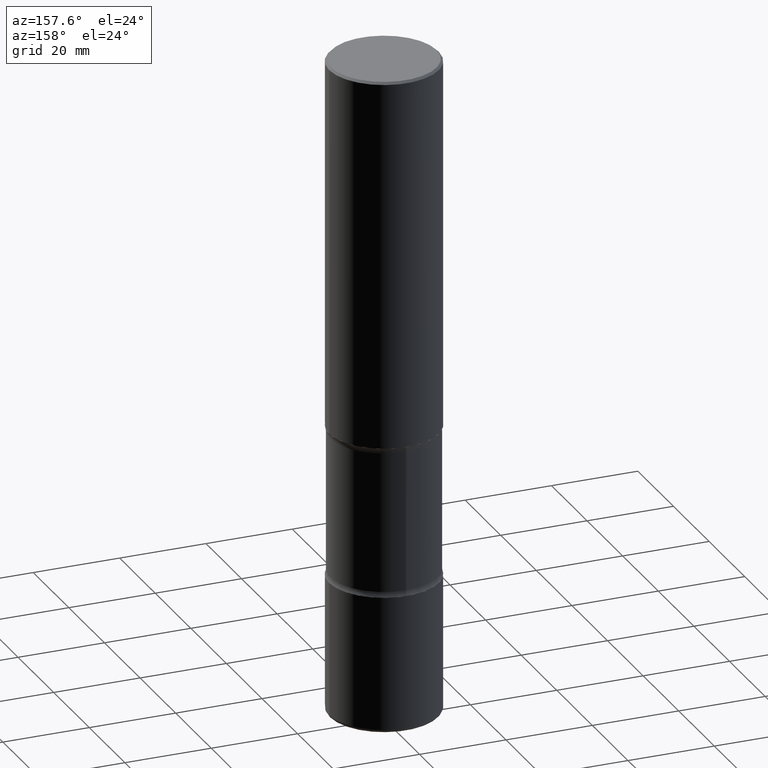
[diagram: clean part render]
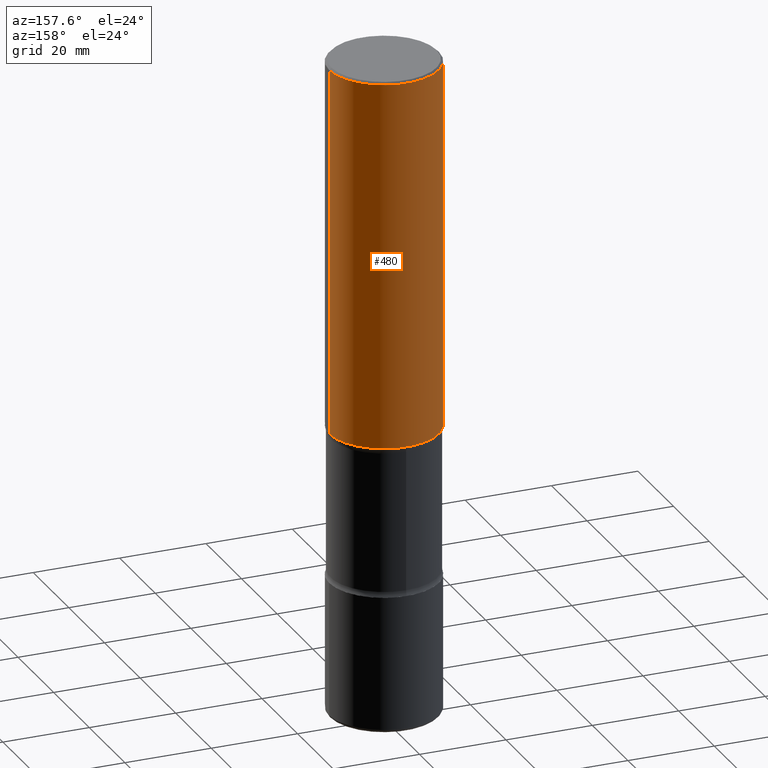
[diagram: same view with one face highlighted and labeled with its STEP entity id]
A machine part, auxiliary view. The second image highlights one B-rep face of the part: STEP entity #480.
In plain terms, the highlighted cylindrical surface (partial cylindrical patch) has radius 12.7 mm, axis along (-0, 0, 1).
Its self-contained STEP definition (entity closure, byte-faithful):
#10 = CARTESIAN_POINT ( 'NONE',  ( 4.890937612370273159E-31, -6.982962677686291609E-17, -0.02000000000000000042 ) ) ;
#57 = DIRECTION ( 'NONE',  ( -2.445468806185136597E-29, 3.491481338843145583E-15, 1.000000000000000000 ) ) ;
#80 = ORIENTED_EDGE ( 'NONE', *, *, #342, .T. ) ;
#81 = DIRECTION ( 'NONE',  ( -2.445468806185136877E-29, 3.491481338843145188E-15, 1.000000000000000000 ) ) ;
#105 = CARTESIAN_POINT ( 'NONE',  ( 8.253457220874837135E-29, -1.178374951859561767E-14, -3.375000000000000444 ) ) ;
#116 = VERTEX_POINT ( 'NONE', #357 ) ;
#155 = CIRCLE ( 'NONE', #531, 0.5000000000000005551 ) ;
#166 = VERTEX_POINT ( 'NONE', #458 ) ;
#173 = VERTEX_POINT ( 'NONE', #367 ) ;
#193 = CARTESIAN_POINT ( 'NONE',  ( 0.5000000000000005551, -3.500078625662632235E-15, -0.02000000000000000042 ) ) ;
#220 = EDGE_LOOP ( 'NONE', ( #322, #80, #538, #346 ) ) ;
#221 = CARTESIAN_POINT ( 'NONE',  ( -0.5000000000000006661, 3.552713678800505663E-15, -2.459467545127455974E-29 ) ) ;
#223 = DIRECTION ( 'NONE',  ( 1.000000000000000000, -6.982962677686266711E-15, 4.876176775795935793E-29 ) ) ;
#256 = VERTEX_POINT ( 'NONE', #193 ) ;
#257 = CARTESIAN_POINT ( 'NONE',  ( 0.5000000000000006661, -3.491481338843138088E-15, 2.438088387897971260E-29 ) ) ;
#277 = FACE_OUTER_BOUND ( 'NONE', #220, .T. ) ;
#282 = DIRECTION ( 'NONE',  ( 1.000000000000000000, -6.982962677686267499E-15, 0.000000000000000000 ) ) ;
#297 = LINE ( 'NONE', #257, #501 ) ;
#318 = DIRECTION ( 'NONE',  ( 1.000000000000000000, -6.982962677686266711E-15, 0.000000000000000000 ) ) ;
#322 = ORIENTED_EDGE ( 'NONE', *, *, #335, .T. ) ;
#326 = AXIS2_PLACEMENT_3D ( 'NONE', #492, #57, #223 ) ;
#333 = AXIS2_PLACEMENT_3D ( 'NONE', #105, #417, #282 ) ;
#335 = EDGE_CURVE ( 'NONE', #173, #116, #510, .T. ) ;
#342 = EDGE_CURVE ( 'NONE', #116, #166, #539, .T. ) ;
#346 = ORIENTED_EDGE ( 'NONE', *, *, #521, .F. ) ;
#357 = CARTESIAN_POINT ( 'NONE',  ( -0.5000000000000007772, -2.374075893885732456E-15, -3.375000000000000444 ) ) ;
#367 = CARTESIAN_POINT ( 'NONE',  ( 0.5000000000000007772, -1.527523085743875734E-14, -3.375000000000000444 ) ) ;
#369 = DIRECTION ( 'NONE',  ( -2.445468806185136597E-29, 3.491481338843145583E-15, 1.000000000000000000 ) ) ;
#383 = VECTOR ( 'NONE', #453, 39.37007874015748143 ) ;
#400 = EDGE_CURVE ( 'NONE', #256, #166, #155, .T. ) ;
#404 = CYLINDRICAL_SURFACE ( 'NONE', #326, 0.5000000000000006661 ) ;
#417 = DIRECTION ( 'NONE',  ( -2.445468806185136597E-29, 3.491481338843145583E-15, 1.000000000000000000 ) ) ;
#453 = DIRECTION ( 'NONE',  ( -2.445468806185136877E-29, 3.491481338843145188E-15, 1.000000000000000000 ) ) ;
#458 = CARTESIAN_POINT ( 'NONE',  ( -0.5000000000000005551, 3.421651712066274396E-15, -0.02000000000000000042 ) ) ;
#480 = ADVANCED_FACE ( 'NONE', ( #277 ), #404, .T. ) ;
#492 = CARTESIAN_POINT ( 'NONE',  ( 0.000000000000000000, 0.000000000000000000, 0.000000000000000000 ) ) ;
#501 = VECTOR ( 'NONE', #81, 39.37007874015748143 ) ;
#510 = CIRCLE ( 'NONE', #333, 0.5000000000000007772 ) ;
#521 = EDGE_CURVE ( 'NONE', #173, #256, #297, .T. ) ;
#531 = AXIS2_PLACEMENT_3D ( 'NONE', #10, #369, #318 ) ;
#538 = ORIENTED_EDGE ( 'NONE', *, *, #400, .F. ) ;
#539 = LINE ( 'NONE', #221, #383 ) ;